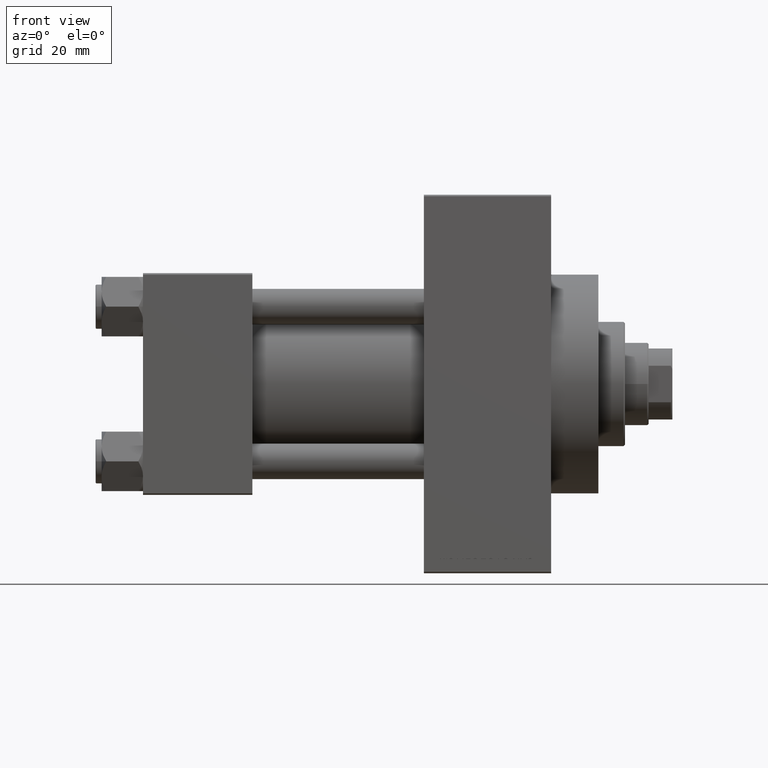
[diagram: clean part render]
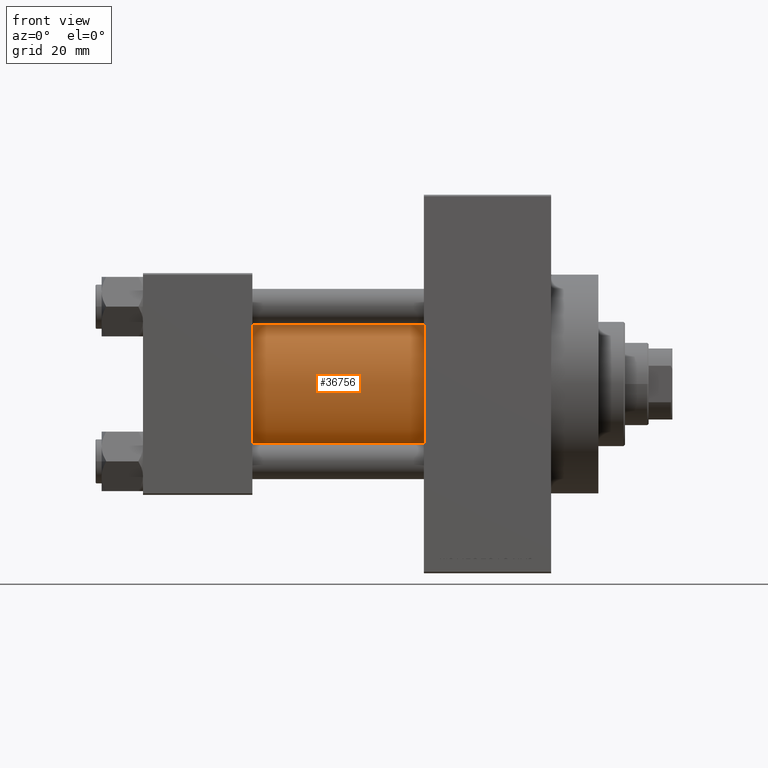
[diagram: same view with one face highlighted and labeled with its STEP entity id]
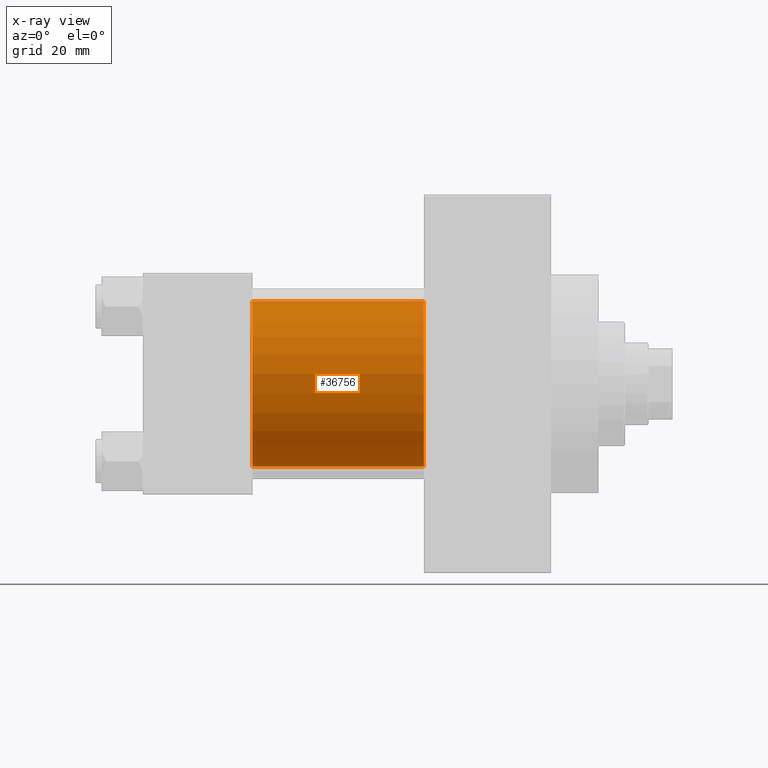
[diagram: x-ray of the same camera — body ghosted, the highlighted face saturated]
A machine part, front view. The second image highlights one B-rep face of the part: STEP entity #36756.
The next image is the same camera in x-ray: the body ghosted, the highlighted face saturated — about 2% of this face is hidden behind the body in this view.
In plain terms, the highlighted cylindrical surface (partial cylindrical patch) has radius 28 mm, axis along (-1, -0, -0).
Its self-contained STEP definition (entity closure, byte-faithful):
#1202 = CIRCLE ( 'NONE', #28858, 28.00000000000000000 ) ;
#2552 = DIRECTION ( 'NONE',  ( 0.000000000000000000, 0.000000000000000000, 1.000000000000000000 ) ) ;
#4336 = CARTESIAN_POINT ( 'NONE',  ( 95.00000000000000000, -2.602085213965210642E-15, 0.000000000000000000 ) ) ;
#4787 = VECTOR ( 'NONE', #46408, 1000.000000000000000 ) ;
#4828 = DIRECTION ( 'NONE',  ( -1.000000000000000000, -0.000000000000000000, -0.000000000000000000 ) ) ;
#6457 = VERTEX_POINT ( 'NONE', #6818 ) ;
#6818 = CARTESIAN_POINT ( 'NONE',  ( 37.00000000000000000, -2.602085213965210642E-15, 28.00000000000000000 ) ) ;
#9756 = CARTESIAN_POINT ( 'NONE',  ( 95.00000000000000000, 8.269258236473776482E-16, -28.00000000000000000 ) ) ;
#9986 = DIRECTION ( 'NONE',  ( 1.000000000000000000, -0.000000000000000000, 0.000000000000000000 ) ) ;
#9989 = CARTESIAN_POINT ( 'NONE',  ( 95.00000000000000000, -2.602085213965210642E-15, 0.000000000000000000 ) ) ;
#10729 = EDGE_CURVE ( 'NONE', #18591, #35975, #1202, .T. ) ;
#11673 = AXIS2_PLACEMENT_3D ( 'NONE', #29769, #9986, #2552 ) ;
#12053 = CARTESIAN_POINT ( 'NONE',  ( 95.00000000000000000, -2.602085213965210642E-15, 28.00000000000000000 ) ) ;
#12481 = FACE_OUTER_BOUND ( 'NONE', #13850, .T. ) ;
#13850 = EDGE_LOOP ( 'NONE', ( #24070, #28823, #15822, #18326 ) ) ;
#14906 = CARTESIAN_POINT ( 'NONE',  ( 37.00000000000000000, 8.269258236473776482E-16, -28.00000000000000000 ) ) ;
#15822 = ORIENTED_EDGE ( 'NONE', *, *, #42646, .T. ) ;
#16680 = AXIS2_PLACEMENT_3D ( 'NONE', #4336, #4828, #38987 ) ;
#17386 = DIRECTION ( 'NONE',  ( 1.000000000000000000, 0.000000000000000000, 0.000000000000000000 ) ) ;
#18326 = ORIENTED_EDGE ( 'NONE', *, *, #19300, .T. ) ;
#18591 = VERTEX_POINT ( 'NONE', #40669 ) ;
#18974 = DIRECTION ( 'NONE',  ( -1.000000000000000000, -0.000000000000000000, -0.000000000000000000 ) ) ;
#19300 = EDGE_CURVE ( 'NONE', #6457, #28161, #36981, .T. ) ;
#20865 = CARTESIAN_POINT ( 'NONE',  ( 95.00000000000000000, 8.269258236473776482E-16, -28.00000000000000000 ) ) ;
#24070 = ORIENTED_EDGE ( 'NONE', *, *, #37322, .F. ) ;
#25066 = DIRECTION ( 'NONE',  ( 0.000000000000000000, 0.000000000000000000, -1.000000000000000000 ) ) ;
#28161 = VERTEX_POINT ( 'NONE', #14906 ) ;
#28823 = ORIENTED_EDGE ( 'NONE', *, *, #10729, .F. ) ;
#28858 = AXIS2_PLACEMENT_3D ( 'NONE', #9989, #17386, #25066 ) ;
#29769 = CARTESIAN_POINT ( 'NONE',  ( 37.00000000000000000, -2.602085213965210642E-15, 0.000000000000000000 ) ) ;
#30554 = CYLINDRICAL_SURFACE ( 'NONE', #16680, 28.00000000000000000 ) ;
#35975 = VERTEX_POINT ( 'NONE', #20865 ) ;
#36756 = ADVANCED_FACE ( 'NONE', ( #12481 ), #30554, .T. ) ;
#36981 = CIRCLE ( 'NONE', #11673, 28.00000000000000000 ) ;
#37322 = EDGE_CURVE ( 'NONE', #35975, #28161, #42942, .T. ) ;
#38987 = DIRECTION ( 'NONE',  ( 0.000000000000000000, 0.000000000000000000, 1.000000000000000000 ) ) ;
#40669 = CARTESIAN_POINT ( 'NONE',  ( 95.00000000000000000, -2.602085213965210642E-15, 28.00000000000000000 ) ) ;
#42515 = LINE ( 'NONE', #12053, #47613 ) ;
#42646 = EDGE_CURVE ( 'NONE', #18591, #6457, #42515, .T. ) ;
#42942 = LINE ( 'NONE', #9756, #4787 ) ;
#46408 = DIRECTION ( 'NONE',  ( -1.000000000000000000, -0.000000000000000000, -0.000000000000000000 ) ) ;
#47613 = VECTOR ( 'NONE', #18974, 1000.000000000000000 ) ;